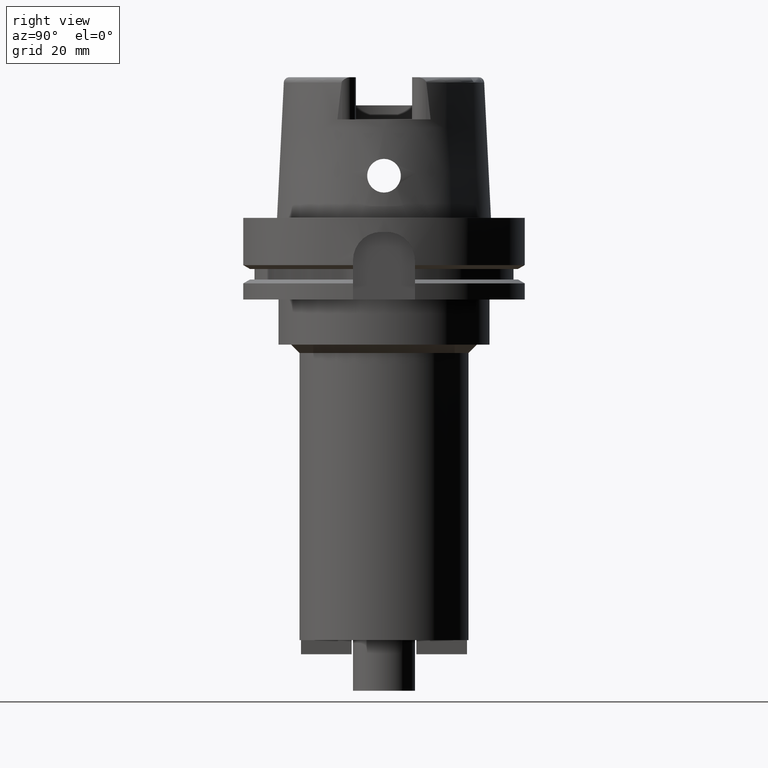
[diagram: clean part render]
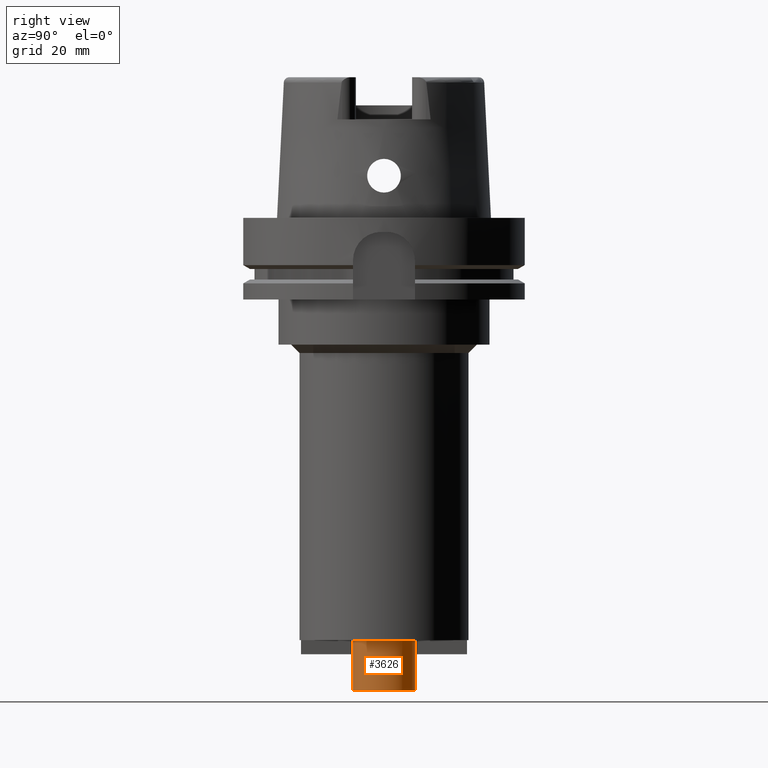
[diagram: same view with one face highlighted and labeled with its STEP entity id]
A machine part, right view. The second image highlights one B-rep face of the part: STEP entity #3626.
In plain terms, the highlighted cylindrical surface (edge-blend (fillet) strip) has radius 11 mm, axis along (0, 0, 1).
Its self-contained STEP definition (entity closure, byte-faithful):
#1089=CARTESIAN_POINT('',(0.E0,0.E0,-1.68E2));
#1090=DIRECTION('',(0.E0,0.E0,1.E0));
#1091=DIRECTION('',(0.E0,-1.E0,0.E0));
#1092=AXIS2_PLACEMENT_3D('',#1089,#1090,#1091);
#1121=DIRECTION('',(0.E0,0.E0,-1.E0));
#1122=VECTOR('',#1121,1.8E1);
#1123=CARTESIAN_POINT('',(0.E0,1.1E1,-1.5E2));
#1124=LINE('',#1123,#1122);
#1128=DIRECTION('',(0.E0,0.E0,-1.E0));
#1129=VECTOR('',#1128,1.8E1);
#1130=CARTESIAN_POINT('',(0.E0,-1.1E1,-1.5E2));
#1131=LINE('',#1130,#1129);
#1159=CARTESIAN_POINT('',(0.E0,0.E0,-1.5E2));
#1160=DIRECTION('',(0.E0,0.E0,-1.E0));
#1161=DIRECTION('',(0.E0,1.E0,0.E0));
#1162=AXIS2_PLACEMENT_3D('',#1159,#1160,#1161);
#2609=CARTESIAN_POINT('',(0.E0,-1.1E1,-1.68E2));
#2610=CARTESIAN_POINT('',(0.E0,1.1E1,-1.68E2));
#2611=VERTEX_POINT('',#2609);
#2612=VERTEX_POINT('',#2610);
#2613=CARTESIAN_POINT('',(0.E0,1.1E1,-1.5E2));
#2614=VERTEX_POINT('',#2613);
#2615=CARTESIAN_POINT('',(0.E0,-1.1E1,-1.5E2));
#2616=VERTEX_POINT('',#2615);
#3612=CARTESIAN_POINT('',(0.E0,0.E0,-1.789E2));
#3613=DIRECTION('',(0.E0,0.E0,1.E0));
#3614=DIRECTION('',(0.E0,1.E0,0.E0));
#3615=AXIS2_PLACEMENT_3D('',#3612,#3613,#3614);
#3616=CYLINDRICAL_SURFACE('',#3615,1.1E1);
#3618=ORIENTED_EDGE('',*,*,#3617,.T.);
#3619=ORIENTED_EDGE('',*,*,#3601,.F.);
#3621=ORIENTED_EDGE('',*,*,#3620,.F.);
#3623=ORIENTED_EDGE('',*,*,#3622,.F.);
#3624=EDGE_LOOP('',(#3618,#3619,#3621,#3623));
#3625=FACE_OUTER_BOUND('',#3624,.F.);
#1093=CIRCLE('',#1092,1.1E1);
#1163=CIRCLE('',#1162,1.1E1);
#3601=EDGE_CURVE('',#2611,#2612,#1093,.T.);
#3617=EDGE_CURVE('',#2614,#2612,#1124,.T.);
#3620=EDGE_CURVE('',#2616,#2611,#1131,.T.);
#3622=EDGE_CURVE('',#2614,#2616,#1163,.T.);
#3626=ADVANCED_FACE('',(#3625),#3616,.T.);